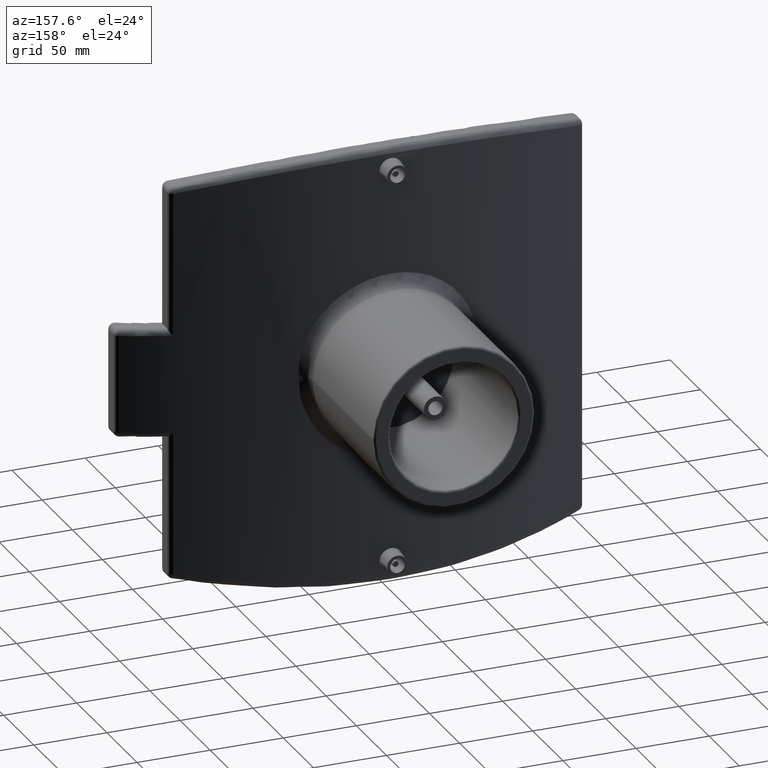
[diagram: clean part render]
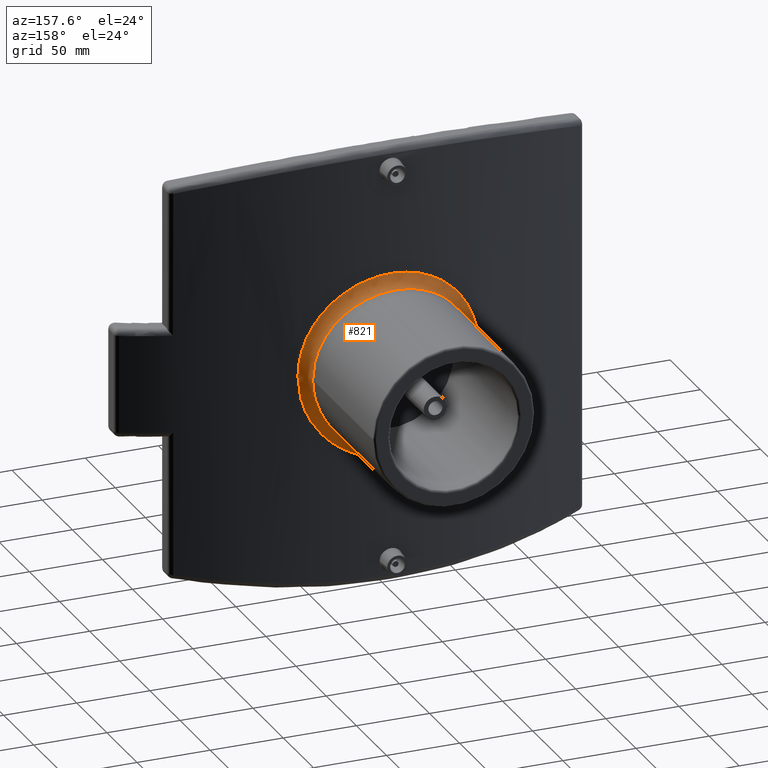
[diagram: same view with one face highlighted and labeled with its STEP entity id]
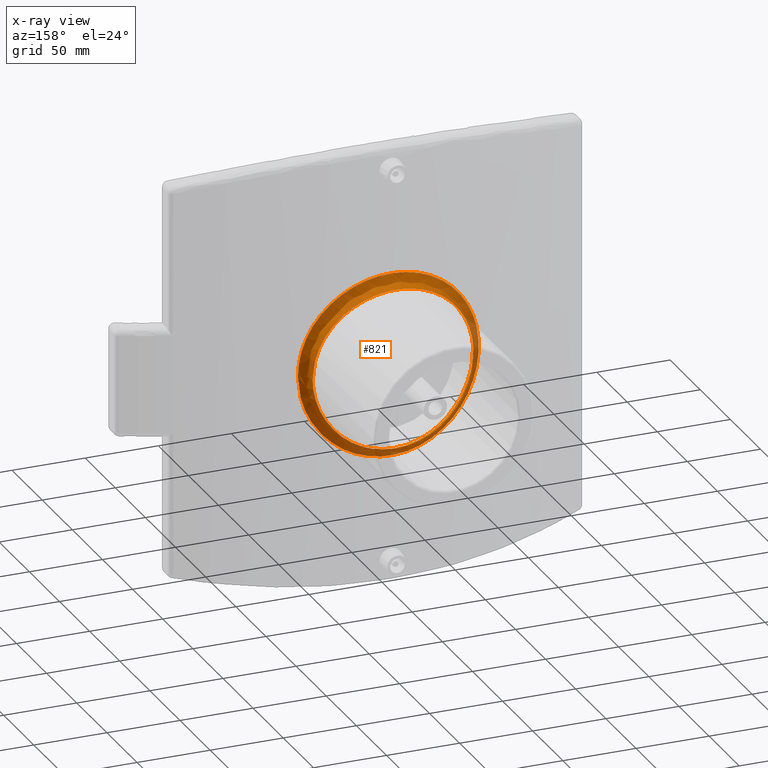
[diagram: x-ray of the same camera — body ghosted, the highlighted face saturated]
A machine part, auxiliary view. The second image highlights one B-rep face of the part: STEP entity #821.
The next image is the same camera in x-ray: the body ghosted, the highlighted face saturated — about 10% of this face is hidden behind the body in this view.
In plain terms, the highlighted face is a freeform B-spline surface patch.
Its self-contained STEP definition (entity closure, byte-faithful):
#89=B_SPLINE_SURFACE_WITH_KNOTS('',3,3,((#1393,#1394,#1395,#1396,#1397,
#1398,#1399,#1400,#1401,#1402,#1403,#1404,#1405,#1406,#1407,#1408,#1409,
#1410,#1411,#1412,#1413,#1414,#1415),(#1416,#1417,#1418,#1419,#1420,#1421,
#1422,#1423,#1424,#1425,#1426,#1427,#1428,#1429,#1430,#1431,#1432,#1433,
#1434,#1435,#1436,#1437,#1438),(#1439,#1440,#1441,#1442,#1443,#1444,#1445,
#1446,#1447,#1448,#1449,#1450,#1451,#1452,#1453,#1454,#1455,#1456,#1457,
#1458,#1459,#1460,#1461),(#1462,#1463,#1464,#1465,#1466,#1467,#1468,#1469,
#1470,#1471,#1472,#1473,#1474,#1475,#1476,#1477,#1478,#1479,#1480,#1481,
#1482,#1483,#1484),(#1485,#1486,#1487,#1488,#1489,#1490,#1491,#1492,#1493,
#1494,#1495,#1496,#1497,#1498,#1499,#1500,#1501,#1502,#1503,#1504,#1505,
#1506,#1507),(#1508,#1509,#1510,#1511,#1512,#1513,#1514,#1515,#1516,#1517,
#1518,#1519,#1520,#1521,#1522,#1523,#1524,#1525,#1526,#1527,#1528,#1529,
#1530)),.UNSPECIFIED.,.F.,.T.,.F.,(4,1,1,4),(4,1,1,1,1,1,1,1,1,1,1,1,1,
1,1,1,1,1,1,1,4),(0.,0.285714285714286,0.571428571428571,1.),(-1.80376408173159E-17,
2.3707421828428,4.7414843656856,6.32197915424747,7.90247394280934,9.48296873137121,
11.0634635199331,12.6439583084949,14.2244530970568,15.8049478856187,17.3854426741805,
18.9659374627424,19.7561848570233,20.5464322513043,22.1269270398661,23.707421828428,
25.2879166169899,26.8684114055517,28.4489061941136,30.8196483769564,33.1903905597992),
 .UNSPECIFIED.);
#95=B_SPLINE_CURVE_WITH_KNOTS('',3,(#1370,#1371,#1372,#1373,#1374,#1375,
#1376,#1377,#1378,#1379,#1380,#1381,#1382,#1383,#1384,#1385,#1386,#1387,
#1388,#1389,#1390,#1391,#1392),.UNSPECIFIED.,.T.,.F.,(4,1,1,1,1,1,1,1,1,
1,1,1,1,1,1,1,1,1,1,1,4),(-1.80376408173159E-17,2.3707421828428,4.7414843656856,
6.32197915424747,7.90247394280934,9.48296873137121,11.0634635199331,12.6439583084949,
14.2244530970568,15.8049478856187,17.3854426741805,18.9659374627424,19.7561848570233,
20.5464322513043,22.1269270398661,23.707421828428,25.2879166169899,26.8684114055517,
28.4489061941136,30.8196483769564,33.1903905597992),.UNSPECIFIED.);
#96=B_SPLINE_CURVE_WITH_KNOTS('',3,(#1533,#1534,#1535,#1536,#1537,#1538,
#1539,#1540,#1541,#1542,#1543,#1544,#1545,#1546,#1547,#1548,#1549,#1550,
#1551,#1552,#1553,#1554,#1555),.UNSPECIFIED.,.T.,.F.,(4,1,1,1,1,1,1,1,1,
1,1,1,1,1,1,1,1,1,1,1,4),(-33.1903905597992,-30.8196483769564,-28.4489061941136,
-26.8684114055517,-25.2879166169899,-23.707421828428,-22.1269270398661,
-20.5464322513043,-19.7561848570233,-18.9659374627424,-17.3854426741805,
-15.8049478856187,-14.2244530970568,-12.6439583084949,-11.0634635199331,
-9.48296873137121,-7.90247394280934,-6.32197915424747,-4.7414843656856,
-2.3707421828428,1.80376408173159E-17),.UNSPECIFIED.);
#184=FACE_OUTER_BOUND('',#255,.T.);
#255=EDGE_LOOP('',(#592,#593,#594,#595));
#338=CIRCLE('',#893,7.99999999999995);
#402=VERTEX_POINT('',#1369);
#403=VERTEX_POINT('',#1531);
#473=EDGE_CURVE('',#402,#402,#95,.T.);
#474=EDGE_CURVE('',#403,#402,#338,.T.);
#475=EDGE_CURVE('',#403,#403,#96,.T.);
#592=ORIENTED_EDGE('',*,*,#474,.T.);
#593=ORIENTED_EDGE('',*,*,#473,.T.);
#594=ORIENTED_EDGE('',*,*,#474,.F.);
#595=ORIENTED_EDGE('',*,*,#475,.T.);
#821=ADVANCED_FACE('',(#184),#89,.T.);
#893=AXIS2_PLACEMENT_3D('',#1532,#1028,#1029);
#1028=DIRECTION('center_axis',(0.,0.,-1.));
#1029=DIRECTION('ref_axis',(-0.148936170212768,-0.988846811797638,0.));
#1369=CARTESIAN_POINT('',(55.,418.282201390401,-4.44089209850063E-15));
#1370=CARTESIAN_POINT('Ctrl Pts',(55.0022313093925,418.280162698282,3.37294843348415E-5));
#1371=CARTESIAN_POINT('Ctrl Pts',(55.0021721037545,418.280147058278,8.23720750550583));
#1372=CARTESIAN_POINT('Ctrl Pts',(51.2342323321124,418.96598082298,24.7121056711272));
#1373=CARTESIAN_POINT('Ctrl Pts',(37.2176204172608,420.992929562948,42.2565603046472));
#1374=CARTESIAN_POINT('Ctrl Pts',(20.4180282193322,422.477870057203,51.9573070759617));
#1375=CARTESIAN_POINT('Ctrl Pts',(4.18015990077086,423.117712075719,55.6751147814798));
#1376=CARTESIAN_POINT('Ctrl Pts',(-12.443013327387,422.897495639372,54.4243578064184));
#1377=CARTESIAN_POINT('Ctrl Pts',(-27.9318523723808,421.896712894179,48.3355668843334));
#1378=CARTESIAN_POINT('Ctrl Pts',(-40.9201415322129,420.461864630856,37.9723101394118));
#1379=CARTESIAN_POINT('Ctrl Pts',(-50.2881972419132,419.085405186862,24.2442959810107));
#1380=CARTESIAN_POINT('Ctrl Pts',(-55.2043274992604,418.247708888969,8.33433278614774));
#1381=CARTESIAN_POINT('Ctrl Pts',(-55.2039240350432,418.247856526703,-8.33574268748259));
#1382=CARTESIAN_POINT('Ctrl Pts',(-51.1061948027394,418.946463426656,-21.5927062126168));
#1383=CARTESIAN_POINT('Ctrl Pts',(-45.6037036948102,419.773602510416,-31.1095914014783));
#1384=CARTESIAN_POINT('Ctrl Pts',(-38.7546993598177,420.701216005027,-39.7000348292266));
#1385=CARTESIAN_POINT('Ctrl Pts',(-27.9308015282765,421.89649986973,-48.3357743506329));
#1386=CARTESIAN_POINT('Ctrl Pts',(-12.4420613006413,422.898285958032,-54.425761543776));
#1387=CARTESIAN_POINT('Ctrl Pts',(4.18093633854046,423.116808382043,-55.6734757462224));
#1388=CARTESIAN_POINT('Ctrl Pts',(20.4193607619176,422.478476496888,-51.9578466002787));
#1389=CARTESIAN_POINT('Ctrl Pts',(37.2184277399231,420.99244162629,-42.2555910027724));
#1390=CARTESIAN_POINT('Ctrl Pts',(51.2345875659408,418.966074663,-24.7109369850018));
#1391=CARTESIAN_POINT('Ctrl Pts',(55.0022905150306,418.280178338285,-8.23714004653717));
#1392=CARTESIAN_POINT('Ctrl Pts',(55.0022313093925,418.280162698282,3.3729484333004E-5));
#1393=CARTESIAN_POINT('Ctrl Pts',(61.8110181639402,410.369426760725,3.86355911417813E-5));
#1394=CARTESIAN_POINT('Ctrl Pts',(61.8109516291709,410.369411416514,9.43534677903401));
#1395=CARTESIAN_POINT('Ctrl Pts',(57.5765744389889,411.042274329874,28.3065937687459));
#1396=CARTESIAN_POINT('Ctrl Pts',(41.82483068168,413.0308883419,48.402969076232));
#1397=CARTESIAN_POINT('Ctrl Pts',(22.9455984437756,414.487744855175,59.5147335597379));
#1398=CARTESIAN_POINT('Ctrl Pts',(4.69762650357419,415.115485842609,63.7733132951495));
#1399=CARTESIAN_POINT('Ctrl Pts',(-13.983347665787,414.899434256122,62.3406280328065));
#1400=CARTESIAN_POINT('Ctrl Pts',(-31.3895671728302,413.917578844171,55.3661947947819));
#1401=CARTESIAN_POINT('Ctrl Pts',(-45.9856909675352,412.509867191028,43.4955552505989));
#1402=CARTESIAN_POINT('Ctrl Pts',(-56.5134286219567,411.159440076946,27.7707390327941));
#1403=CARTESIAN_POINT('Ctrl Pts',(-62.0381320639658,410.33758673504,9.54659937322382));
#1404=CARTESIAN_POINT('Ctrl Pts',(-62.0376786544682,410.337731580572,-9.54821435111648));
#1405=CARTESIAN_POINT('Ctrl Pts',(-57.4326870026917,411.023126056885,-24.7334634799065));
#1406=CARTESIAN_POINT('Ctrl Pts',(-51.2490364539357,411.834621848281,-35.6346228780571));
#1407=CARTESIAN_POINT('Ctrl Pts',(-43.5521863211878,412.744691825263,-45.4745853498414));
#1408=CARTESIAN_POINT('Ctrl Pts',(-31.3883862435757,413.917369848552,-55.3664324379977));
#1409=CARTESIAN_POINT('Ctrl Pts',(-13.9822777866007,414.900209627857,-62.3422359501433));
#1410=CARTESIAN_POINT('Ctrl Pts',(4.6984990574313,415.114599240065,-63.7714358547639));
#1411=CARTESIAN_POINT('Ctrl Pts',(22.9470959432768,414.488339825552,-59.5153515603192));
#1412=CARTESIAN_POINT('Ctrl Pts',(41.8257379437047,413.030409633358,-48.4018587849938));
#1413=CARTESIAN_POINT('Ctrl Pts',(57.5769736476047,411.042366395142,-28.3052550919114));
#1414=CARTESIAN_POINT('Ctrl Pts',(61.8110846987095,410.369442104937,-9.43526950785174));
#1415=CARTESIAN_POINT('Ctrl Pts',(61.8110181639402,410.369426760725,3.86355911417813E-5));
#1416=CARTESIAN_POINT('Ctrl Pts',(60.7402855460632,410.530750394372,3.72451720023981E-5));
#1417=CARTESIAN_POINT('Ctrl Pts',(60.7402252087137,410.530735347206,9.27122513493749));
#1418=CARTESIAN_POINT('Ctrl Pts',(56.561289950871,411.182986629722,27.8142266350222));
#1419=CARTESIAN_POINT('Ctrl Pts',(41.0486912192178,413.10468894273,47.5228224575165));
#1420=CARTESIAN_POINT('Ctrl Pts',(22.5042986543616,414.507577489034,58.3968132758625));
#1421=CARTESIAN_POINT('Ctrl Pts',(4.60565593999717,415.110959794806,62.5588323141606));
#1422=CARTESIAN_POINT('Ctrl Pts',(-13.7112801734797,414.903386466335,61.1590667227907));
#1423=CARTESIAN_POINT('Ctrl Pts',(-30.7949845059994,413.958873855988,54.3389478224557));
#1424=CARTESIAN_POINT('Ctrl Pts',(-45.1458539404223,412.601408755084,42.7116929414872));
#1425=CARTESIAN_POINT('Ctrl Pts',(-55.5154907684086,411.295892264791,27.2833621319333));
#1426=CARTESIAN_POINT('Ctrl Pts',(-60.964123232676,410.499955132191,9.38159793456557));
#1427=CARTESIAN_POINT('Ctrl Pts',(-60.9636803317647,410.500091554275,-9.3831780298611));
#1428=CARTESIAN_POINT('Ctrl Pts',(-56.4220508698612,411.163889383186,-24.2998059214728));
#1429=CARTESIAN_POINT('Ctrl Pts',(-50.3301747987489,411.948619830488,-34.9989914511963));
#1430=CARTESIAN_POINT('Ctrl Pts',(-42.7532219993599,412.827839349807,-44.6501117719874));
#1431=CARTESIAN_POINT('Ctrl Pts',(-30.7938398503511,413.958694948857,-54.3392316446654));
#1432=CARTESIAN_POINT('Ctrl Pts',(-13.7101848440093,414.904107963472,-61.1605705428963));
#1433=CARTESIAN_POINT('Ctrl Pts',(4.60652216272879,415.110134129933,-62.557068619756));
#1434=CARTESIAN_POINT('Ctrl Pts',(22.5056687391216,414.508140517628,-58.397373021414));
#1435=CARTESIAN_POINT('Ctrl Pts',(41.04966385357,413.104222209097,-47.5217513320546));
#1436=CARTESIAN_POINT('Ctrl Pts',(56.5616519749681,411.183076912719,-27.8129007035708));
#1437=CARTESIAN_POINT('Ctrl Pts',(60.7403458834127,410.530765441538,-9.2711506445935));
#1438=CARTESIAN_POINT('Ctrl Pts',(60.7402855460632,410.530750394372,3.72451720023981E-5));
#1439=CARTESIAN_POINT('Ctrl Pts',(58.6695907234797,411.295358219985,3.58491440935387E-5));
#1440=CARTESIAN_POINT('Ctrl Pts',(58.6695451217921,411.295344429563,8.9436085697297));
#1441=CARTESIAN_POINT('Ctrl Pts',(54.5992461497832,411.920691792338,26.8313584809232));
#1442=CARTESIAN_POINT('Ctrl Pts',(39.5515057714693,413.753261996789,45.7666879783872));
#1443=CARTESIAN_POINT('Ctrl Pts',(21.6540236744827,415.082932863613,56.1668227057471));
#1444=CARTESIAN_POINT('Ctrl Pts',(4.42858077093002,415.652968664274,60.1364995131282));
#1445=CARTESIAN_POINT('Ctrl Pts',(-13.1872656995806,415.457018214117,58.8023178550679));
#1446=CARTESIAN_POINT('Ctrl Pts',(-29.6488363282071,414.563468411172,52.2895680221319));
#1447=CARTESIAN_POINT('Ctrl Pts',(-43.5249271741474,413.273680974552,41.1475038270947));
#1448=CARTESIAN_POINT('Ctrl Pts',(-53.5870370798855,412.027830624701,26.3105817240838));
#1449=CARTESIAN_POINT('Ctrl Pts',(-58.8870433397605,411.265941075504,9.05219186702214));
#1450=CARTESIAN_POINT('Ctrl Pts',(-58.886624988228,411.266079773902,-9.053682793904));
#1451=CARTESIAN_POINT('Ctrl Pts',(-54.4687834293039,411.901472638955,-23.4342858777178));
#1452=CARTESIAN_POINT('Ctrl Pts',(-48.5555420495971,412.650733656502,-33.7304660738477));
#1453=CARTESIAN_POINT('Ctrl Pts',(-41.2114075729791,413.488810944641,-43.0049496396642));
#1454=CARTESIAN_POINT('Ctrl Pts',(-29.647768039533,414.563312753147,-52.2899873421733));
#1455=CARTESIAN_POINT('Ctrl Pts',(-13.1861001923459,415.457682456108,-58.8035716244186));
#1456=CARTESIAN_POINT('Ctrl Pts',(4.42940932246248,415.652206235637,-60.1350148391058));
#1457=CARTESIAN_POINT('Ctrl Pts',(21.6551048018266,415.083453904869,-56.1672615716641));
#1458=CARTESIAN_POINT('Ctrl Pts',(39.5526461725115,413.752824971655,-45.7656609904081));
#1459=CARTESIAN_POINT('Ctrl Pts',(54.5995197599083,411.920774534873,-26.8300778425905));
#1460=CARTESIAN_POINT('Ctrl Pts',(58.6696363251672,411.295372010408,-8.94353687144152));
#1461=CARTESIAN_POINT('Ctrl Pts',(58.6695907234797,411.295358219985,3.58491440935387E-5));
#1462=CARTESIAN_POINT('Ctrl Pts',(55.8557760042989,413.955355662822,2.74652341271013E-5));
#1463=CARTESIAN_POINT('Ctrl Pts',(55.8557229133623,413.955342987069,8.4620234592278));
#1464=CARTESIAN_POINT('Ctrl Pts',(51.9558935921982,414.583894980786,25.3866403911853));
#1465=CARTESIAN_POINT('Ctrl Pts',(37.5841980155297,416.423966039761,43.2378895940425));
#1466=CARTESIAN_POINT('Ctrl Pts',(20.555739995523,417.757541382541,53.0048902728723));
#1467=CARTESIAN_POINT('Ctrl Pts',(4.20158194701665,418.328865877305,56.7240917614115));
#1468=CARTESIAN_POINT('Ctrl Pts',(-12.5141151769116,418.132494149008,55.4747290920237));
#1469=CARTESIAN_POINT('Ctrl Pts',(-28.1573976865796,417.236708860917,49.3670036368387));
#1470=CARTESIAN_POINT('Ctrl Pts',(-41.3782515191467,415.94250140047,38.8859254245545));
#1471=CARTESIAN_POINT('Ctrl Pts',(-50.9909010165227,414.69136392381,24.8864421116327));
#1472=CARTESIAN_POINT('Ctrl Pts',(-56.0637050268258,413.925802611556,8.56662859996915));
#1473=CARTESIAN_POINT('Ctrl Pts',(-56.0632792282771,413.925957531228,-8.56811340329519));
#1474=CARTESIAN_POINT('Ctrl Pts',(-51.8348485647518,414.56437433675,-22.1663375468375));
#1475=CARTESIAN_POINT('Ctrl Pts',(-46.1841313108211,415.316919697334,-31.8876202875467));
#1476=CARTESIAN_POINT('Ctrl Pts',(-39.1740133600293,416.15837439438,-40.633184918118));
#1477=CARTESIAN_POINT('Ctrl Pts',(-28.1563784446509,417.236530437037,-49.3673064746602));
#1478=CARTESIAN_POINT('Ctrl Pts',(-12.5130623278705,418.133181478612,-55.4759618449294));
#1479=CARTESIAN_POINT('Ctrl Pts',(4.20251379583354,418.328074384278,-56.7226127717918));
#1480=CARTESIAN_POINT('Ctrl Pts',(20.5568852152415,417.758065090017,-53.0052516825224));
#1481=CARTESIAN_POINT('Ctrl Pts',(37.5851429091026,416.423545931415,-43.2370806594219));
#1482=CARTESIAN_POINT('Ctrl Pts',(51.9562121378176,414.583971035304,-25.3853355727768));
#1483=CARTESIAN_POINT('Ctrl Pts',(55.8558290952355,413.955368338575,-8.46196852875956));
#1484=CARTESIAN_POINT('Ctrl Pts',(55.8557760042989,413.955355662822,2.74652341271013E-5));
#1485=CARTESIAN_POINT('Ctrl Pts',(55.0025063144405,416.655865722141,3.84611222336444E-5));
#1486=CARTESIAN_POINT('Ctrl Pts',(55.0024764863919,416.655849610515,8.27351559563513));
#1487=CARTESIAN_POINT('Ctrl Pts',(51.1958480383509,417.320009100084,24.8209856029833));
#1488=CARTESIAN_POINT('Ctrl Pts',(37.1070240023955,419.276289323368,42.3502802125739));
#1489=CARTESIAN_POINT('Ctrl Pts',(20.3249437904642,420.703821430994,51.987041478289));
#1490=CARTESIAN_POINT('Ctrl Pts',(4.15791084561761,421.317655952985,55.6677623628271));
#1491=CARTESIAN_POINT('Ctrl Pts',(-12.3797762277642,421.106507460561,54.4305560766903));
#1492=CARTESIAN_POINT('Ctrl Pts',(-27.823679987924,420.14549849474,48.3933405856769));
#1493=CARTESIAN_POINT('Ctrl Pts',(-40.8275556621433,418.763964565373,38.0734378135467));
#1494=CARTESIAN_POINT('Ctrl Pts',(-50.2475331349642,417.434923585556,24.3407794095342));
#1495=CARTESIAN_POINT('Ctrl Pts',(-55.2060089005311,416.624517899212,8.37362277126524));
#1496=CARTESIAN_POINT('Ctrl Pts',(-55.2056399894089,416.62464691526,-8.37492455188546));
#1497=CARTESIAN_POINT('Ctrl Pts',(-51.072433369612,417.300537567777,-21.6798845823641));
#1498=CARTESIAN_POINT('Ctrl Pts',(-45.5371657258447,418.099406916604,-31.2083590487766));
#1499=CARTESIAN_POINT('Ctrl Pts',(-38.6594128922413,418.994403957517,-39.7937771032712));
#1500=CARTESIAN_POINT('Ctrl Pts',(-27.8226906578388,420.145335400388,-48.3938800004734));
#1501=CARTESIAN_POINT('Ctrl Pts',(-12.378596181395,421.107221862652,-54.4315809628337));
#1502=CARTESIAN_POINT('Ctrl Pts',(4.15855225682503,421.316840525467,-55.6665546562592));
#1503=CARTESIAN_POINT('Ctrl Pts',(20.3257720499806,420.704391317474,-51.9874422836218));
#1504=CARTESIAN_POINT('Ctrl Pts',(37.1082867935515,419.275801352824,-42.3491988562765));
#1505=CARTESIAN_POINT('Ctrl Pts',(51.1960270066421,417.320105769839,-24.8198772040941));
#1506=CARTESIAN_POINT('Ctrl Pts',(55.002536142489,416.655881833767,-8.27343867339068));
#1507=CARTESIAN_POINT('Ctrl Pts',(55.0025063144405,416.655865722141,3.84611222336444E-5));
#1508=CARTESIAN_POINT('Ctrl Pts',(55.0022313093925,418.280162698282,3.37294843346535E-5));
#1509=CARTESIAN_POINT('Ctrl Pts',(55.0021721037545,418.280147058278,8.23720750550582));
#1510=CARTESIAN_POINT('Ctrl Pts',(51.2342323321124,418.96598082298,24.7121056711272));
#1511=CARTESIAN_POINT('Ctrl Pts',(37.2176204172608,420.992929562948,42.2565603046472));
#1512=CARTESIAN_POINT('Ctrl Pts',(20.4180282193322,422.477870057203,51.9573070759617));
#1513=CARTESIAN_POINT('Ctrl Pts',(4.18015990077086,423.117712075719,55.6751147814798));
#1514=CARTESIAN_POINT('Ctrl Pts',(-12.443013327387,422.897495639372,54.4243578064184));
#1515=CARTESIAN_POINT('Ctrl Pts',(-27.9318523723808,421.896712894179,48.3355668843334));
#1516=CARTESIAN_POINT('Ctrl Pts',(-40.9201415322129,420.461864630856,37.9723101394118));
#1517=CARTESIAN_POINT('Ctrl Pts',(-50.2881972419132,419.085405186862,24.2442959810107));
#1518=CARTESIAN_POINT('Ctrl Pts',(-55.2043274992604,418.247708888969,8.33433278614774));
#1519=CARTESIAN_POINT('Ctrl Pts',(-55.2039240350432,418.247856526703,-8.33574268748259));
#1520=CARTESIAN_POINT('Ctrl Pts',(-51.1061948027394,418.946463426656,-21.5927062126168));
#1521=CARTESIAN_POINT('Ctrl Pts',(-45.6037036948102,419.773602510416,-31.1095914014783));
#1522=CARTESIAN_POINT('Ctrl Pts',(-38.7546993598177,420.701216005027,-39.7000348292266));
#1523=CARTESIAN_POINT('Ctrl Pts',(-27.9308015282765,421.89649986973,-48.3357743506329));
#1524=CARTESIAN_POINT('Ctrl Pts',(-12.4420613006413,422.898285958032,-54.425761543776));
#1525=CARTESIAN_POINT('Ctrl Pts',(4.18093633854046,423.116808382043,-55.6734757462224));
#1526=CARTESIAN_POINT('Ctrl Pts',(20.4193607619176,422.478476496888,-51.9578466002787));
#1527=CARTESIAN_POINT('Ctrl Pts',(37.2184277399231,420.99244162629,-42.2555910027724));
#1528=CARTESIAN_POINT('Ctrl Pts',(51.2345875659408,418.966074663,-24.7109369850018));
#1529=CARTESIAN_POINT('Ctrl Pts',(55.0022905150306,418.280178338285,-8.23714004653716));
#1530=CARTESIAN_POINT('Ctrl Pts',(55.0022313093925,418.280162698282,3.37294843346535E-5));
#1531=CARTESIAN_POINT('',(61.8085106382979,410.37142689602,6.66133814775094E-15));
#1532=CARTESIAN_POINT('Origin',(63.,418.282201390401,-4.44089209850063E-15));
#1533=CARTESIAN_POINT('Ctrl Pts',(61.8110181639402,410.369426760725,3.86355911397018E-5));
#1534=CARTESIAN_POINT('Ctrl Pts',(61.8110846987095,410.369442104937,-9.43526950785174));
#1535=CARTESIAN_POINT('Ctrl Pts',(57.5769736476047,411.042366395142,-28.3052550919114));
#1536=CARTESIAN_POINT('Ctrl Pts',(41.8257379437047,413.030409633358,-48.4018587849938));
#1537=CARTESIAN_POINT('Ctrl Pts',(22.9470959432768,414.488339825552,-59.5153515603192));
#1538=CARTESIAN_POINT('Ctrl Pts',(4.6984990574313,415.114599240065,-63.7714358547639));
#1539=CARTESIAN_POINT('Ctrl Pts',(-13.9822777866007,414.900209627857,-62.3422359501433));
#1540=CARTESIAN_POINT('Ctrl Pts',(-31.3883862435757,413.917369848552,-55.3664324379977));
#1541=CARTESIAN_POINT('Ctrl Pts',(-43.5521863211878,412.744691825263,-45.4745853498414));
#1542=CARTESIAN_POINT('Ctrl Pts',(-51.2490364539357,411.834621848281,-35.6346228780571));
#1543=CARTESIAN_POINT('Ctrl Pts',(-57.4326870026917,411.023126056885,-24.7334634799065));
#1544=CARTESIAN_POINT('Ctrl Pts',(-62.0376786544682,410.337731580572,-9.54821435111648));
#1545=CARTESIAN_POINT('Ctrl Pts',(-62.0381320639658,410.33758673504,9.54659937322382));
#1546=CARTESIAN_POINT('Ctrl Pts',(-56.5134286219567,411.159440076946,27.7707390327941));
#1547=CARTESIAN_POINT('Ctrl Pts',(-45.9856909675352,412.509867191028,43.4955552505989));
#1548=CARTESIAN_POINT('Ctrl Pts',(-31.3895671728302,413.917578844171,55.3661947947819));
#1549=CARTESIAN_POINT('Ctrl Pts',(-13.983347665787,414.899434256122,62.3406280328065));
#1550=CARTESIAN_POINT('Ctrl Pts',(4.69762650357419,415.115485842609,63.7733132951495));
#1551=CARTESIAN_POINT('Ctrl Pts',(22.9455984437756,414.487744855175,59.5147335597379));
#1552=CARTESIAN_POINT('Ctrl Pts',(41.82483068168,413.0308883419,48.402969076232));
#1553=CARTESIAN_POINT('Ctrl Pts',(57.5765744389889,411.042274329874,28.3065937687459));
#1554=CARTESIAN_POINT('Ctrl Pts',(61.8109516291709,410.369411416514,9.43534677903401));
#1555=CARTESIAN_POINT('Ctrl Pts',(61.8110181639402,410.369426760725,3.86355911419967E-5));